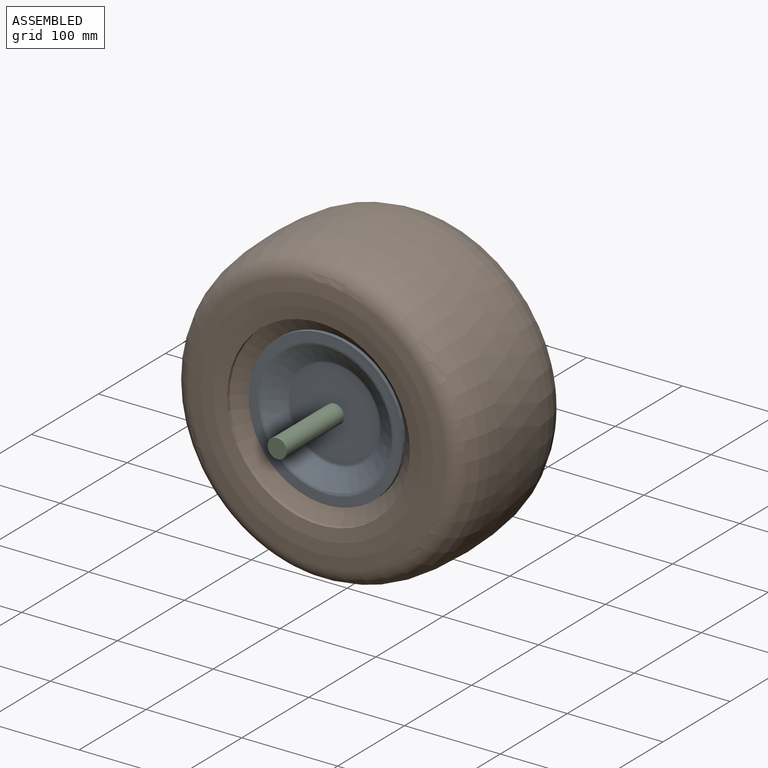
[diagram: assembled view]
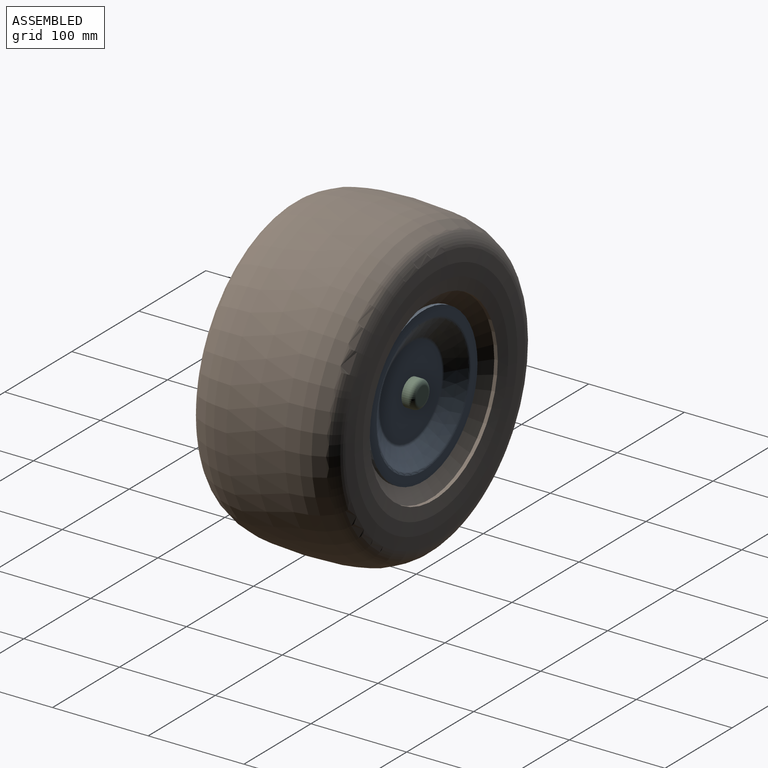
[diagram: assembled view, second angle]
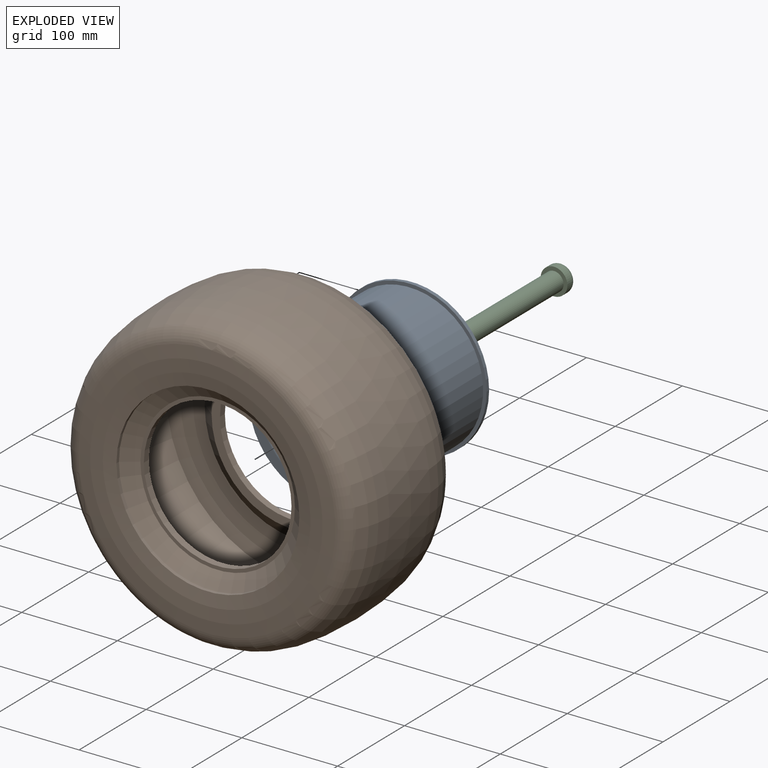
[diagram: exploded view]
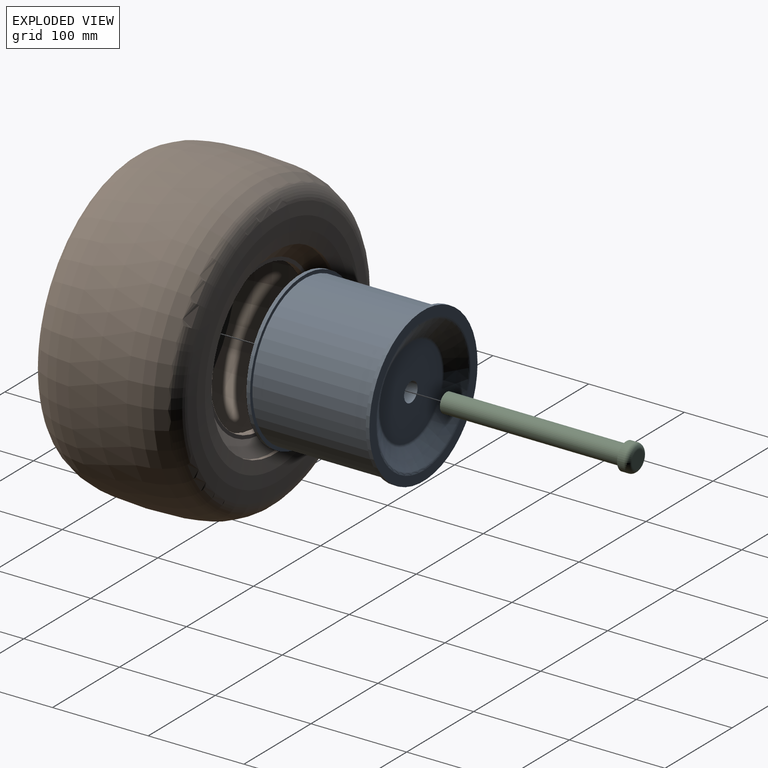
[diagram: exploded view, second angle]
ASSEMBLY  parts=3 mates=2
PART A: 16 faces, bbox 128.5x161.4x161.4 mm
  f0: cone r=69.31mm half-angle=58.6deg, axis (1,0,0), area 8214.9mm2, adj f12,f15
  f1: plane 161.41x161.41mm, normal (1,0,0), area 4750.2mm2, adj f2,f12
  f2: cylinder r=80.7mm len=161.41mm, axis (-1,0,0), area 1923.6mm2, adj f1,f3
  f3: plane 161.41x161.41mm, normal (-1,0,0), area 1764.2mm2, adj f2,f4
  f4: cylinder r=77.15mm len=154.29mm, axis (-1,0,0), area 58591.8mm2, adj f3,f5
  f5: plane 161.41x161.41mm, normal (1,0,0), area 1764.2mm2, adj f4,f6
  f6: cylinder r=80.7mm len=161.41mm, axis (-1,0,0), area 1923.6mm2, adj f5,f7
  f7: plane 161.41x161.41mm, normal (-1,0,0), area 4750.2mm2, adj f6,f13
  f8: cone r=69.31mm half-angle=58.6deg, axis (-1,0,0), area 8214.9mm2, adj f13,f14
  f9: plane 92.92x92.92mm, normal (-1,0,0), area 6467.1mm2, adj f10,f14
  f10: cylinder r=10mm len=102.28mm, axis (-1,0,0), area 6426.6mm2, adj f9,f11
  f11: plane 92.92x92.92mm, normal (1,0,0), area 6467.1mm2, adj f10,f15
  f12: torus R=70.72mm, axis (1,0,0), area 1194.5mm2, adj f0,f1
  f13: torus R=70.72mm, axis (1,0,0), area 1194.5mm2, adj f7,f8
  f14: torus R=46.46mm, axis (1,0,0), area 822.9mm2, adj f8,f9
  f15: torus R=46.46mm, axis (1,0,0), area 822.9mm2, adj f0,f11
PART B: 22 faces, bbox 154.9x408x408 mm
  f0: cylinder r=77.15mm len=154.29mm, axis (-1,0,0), area 3527.2mm2, adj f1,f21
  f1: plane 161.41x161.41mm, normal (1,0,0), area 1764.2mm2, adj f0,f2
  f2: cone r=95.58mm half-angle=53.9deg, axis (1,0,0), area 10191mm2, adj f1,f3
  f3: cylinder r=95.58mm len=191.16mm, axis (-1,0,0), area 2241.5mm2, adj f2,f4
  f4: torus R=119.71mm, axis (-1,0,0), area 28187.6mm2, adj f3,f5
  f5: torus R=131.97mm, axis (-1,0,0), area 16351.4mm2, adj f4,f6
  f6: revolved ~320x320mm, area 67701.2mm2, adj f5,f7
  f7: revolved ~320x320mm, area 67701.2mm2, adj f6,f8
  f8: torus R=131.97mm, axis (-1,0,0), area 16351.4mm2, adj f7,f9
  f9: torus R=119.71mm, axis (-1,0,0), area 28187.6mm2, adj f8,f10
  f10: cylinder r=95.58mm len=191.16mm, axis (-1,0,0), area 2241.5mm2, adj f9,f11
  f11: cone r=95.58mm half-angle=53.9deg, axis (-1,0,0), area 10191mm2, adj f10,f12
  f12: plane 161.41x161.41mm, normal (-1,0,0), area 1764.2mm2, adj f11,f13
  f13: cylinder r=77.15mm len=154.29mm, axis (-1,0,0), area 3527.2mm2, adj f12,f14
  f14: plane 171.87x171.87mm, normal (1,0,0), area 4502.9mm2, adj f13,f15
  f15: cone r=85.93mm half-angle=52.1deg, axis (-1,0,0), area 11773.8mm2, adj f14,f16
  f16: torus R=114.55mm, axis (-1,0,0), area 29119.9mm2, adj f15,f17
  f17: revolved ~300.37x300.37mm, area 59484.8mm2, adj f16,f18
  f18: revolved ~300.37x300.37mm, area 59484.8mm2, adj f17,f19
  f19: torus R=114.55mm, axis (-1,0,0), area 29119.9mm2, adj f18,f20
  f20: cone r=85.93mm half-angle=52.1deg, axis (1,0,0), area 11773.8mm2, adj f19,f21
  f21: plane 171.87x171.87mm, normal (-1,0,0), area 4502.9mm2, adj f0,f20
PART C: 6 faces, bbox 30.3x200x30.3 mm
  f0: cylinder r=10mm len=188mm, axis (0,1,0), area 11812.4mm2, adj f1,f3
  f1: plane 20x20mm, normal (0,-1,0), area 314.2mm2, adj f0
  f2: cylinder r=14mm len=28mm, axis (0,1,0), area 615.8mm2, adj f3,f5
  f3: plane 28x28mm, normal (0,-1,0), area 301.6mm2, adj f0,f2
  f4: plane 18x18mm, normal (0,1,0), area 254.5mm2, adj f5
  f5: torus R=9mm, axis (0,-1,0), area 601.2mm2, adj f2,f4
PLACE A rot(axis=(-0.58,-0.58,0.58),120deg) t=(294.86,39.69,99.53)mm
PLACE B rot(axis=(-0.58,-0.58,0.58),120deg) t=(294.86,39.69,99.53)mm
PLACE C t=(294.86,102.83,99.53)mm
MATE revolute A.f0 <-> C.f2  axis (0,1,0) through (294.86,90.83,99.53)mm
MATE fastened B.f0 <-> A.f0  axis (0,1,0) through (294.86,100.13,99.53)mm
